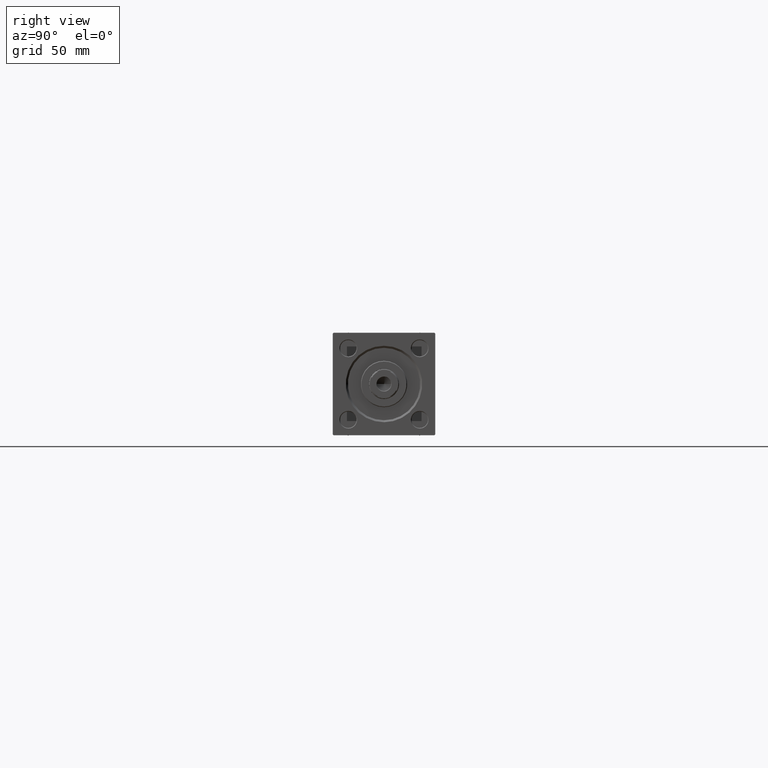
[diagram: clean part render]
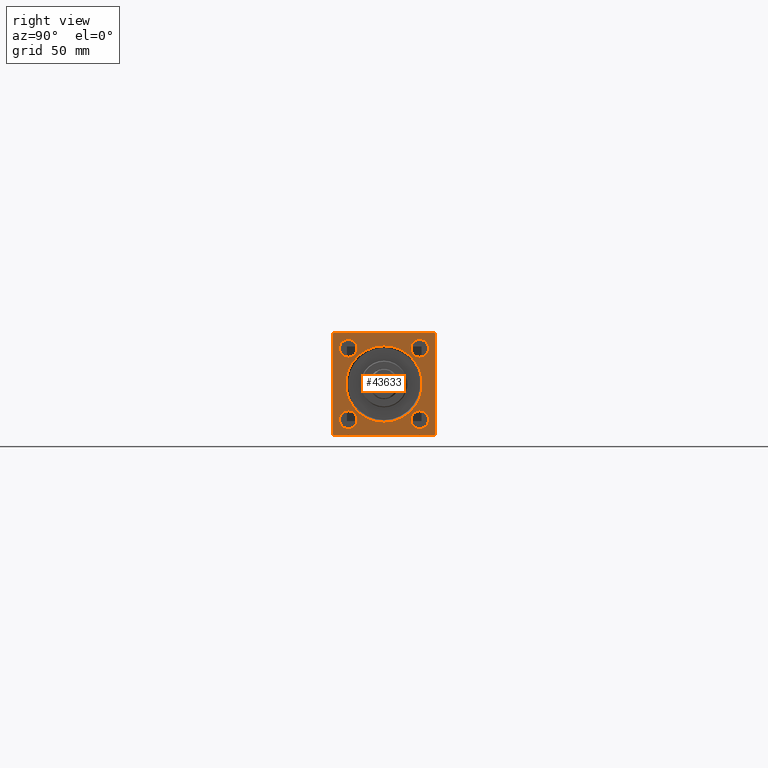
[diagram: same view with one face highlighted and labeled with its STEP entity id]
A machine part, right view. The second image highlights one B-rep face of the part: STEP entity #43633.
In plain terms, the highlighted planar face has unit normal (-1, 0, 0).
Its self-contained STEP definition (entity closure, byte-faithful):
#12 = AXIS2_PLACEMENT_3D ( 'NONE', #47510, #39632, #32519 ) ;
#277 = EDGE_CURVE ( 'NONE', #32276, #446, #18091, .T. ) ;
#446 = VERTEX_POINT ( 'NONE', #41942 ) ;
#482 = DIRECTION ( 'NONE',  ( -1.000000000000000000, -0.000000000000000000, 0.000000000000000000 ) ) ;
#700 = ORIENTED_EDGE ( 'NONE', *, *, #19279, .T. ) ;
#1083 = ORIENTED_EDGE ( 'NONE', *, *, #29863, .T. ) ;
#1148 = VERTEX_POINT ( 'NONE', #15668 ) ;
#1328 = EDGE_LOOP ( 'NONE', ( #38998, #32212 ) ) ;
#1414 = AXIS2_PLACEMENT_3D ( 'NONE', #1860, #17068, #5164 ) ;
#1620 = DIRECTION ( 'NONE',  ( -1.000000000000000000, -0.000000000000000000, 0.000000000000000000 ) ) ;
#1860 = CARTESIAN_POINT ( 'NONE',  ( 484.0000000000000000, -26.15000000000000213, -26.15000000000000213 ) ) ;
#2345 = DIRECTION ( 'NONE',  ( -1.000000000000000000, -0.000000000000000000, 0.000000000000000000 ) ) ;
#2607 = LINE ( 'NONE', #22624, #45811 ) ;
#2797 = CIRCLE ( 'NONE', #3632, 6.499999999999897859 ) ;
#3298 = DIRECTION ( 'NONE',  ( -1.000000000000000000, -0.000000000000000000, 0.000000000000000000 ) ) ;
#3632 = AXIS2_PLACEMENT_3D ( 'NONE', #9208, #9458, #24935 ) ;
#4351 = VERTEX_POINT ( 'NONE', #47720 ) ;
#4860 = CIRCLE ( 'NONE', #49428, 28.00000000000002487 ) ;
#5147 = ORIENTED_EDGE ( 'NONE', *, *, #277, .T. ) ;
#5164 = DIRECTION ( 'NONE',  ( 0.000000000000000000, 0.000000000000000000, 1.000000000000000000 ) ) ;
#5365 = FACE_OUTER_BOUND ( 'NONE', #22930, .T. ) ;
#5937 = DIRECTION ( 'NONE',  ( -0.000000000000000000, 0.7071067811865033859, 0.7071067811865916486 ) ) ;
#6113 = CARTESIAN_POINT ( 'NONE',  ( 484.0000000000000000, -26.14999999999999147, 19.65000000000010516 ) ) ;
#6312 = ORIENTED_EDGE ( 'NONE', *, *, #6482, .T. ) ;
#6482 = EDGE_CURVE ( 'NONE', #43021, #4351, #15497, .T. ) ;
#6827 = VECTOR ( 'NONE', #22857, 1000.000000000000000 ) ;
#7021 = VERTEX_POINT ( 'NONE', #12638 ) ;
#7390 = CARTESIAN_POINT ( 'NONE',  ( 484.0000000000000000, 26.14999999999999858, 32.64999999999989910 ) ) ;
#7614 = CARTESIAN_POINT ( 'NONE',  ( 484.0000000000000000, 0.000000000000000000, 0.000000000000000000 ) ) ;
#7817 = CARTESIAN_POINT ( 'NONE',  ( 484.0000000000000000, -37.50000000000000000, 37.49999999999997868 ) ) ;
#7839 = EDGE_CURVE ( 'NONE', #14297, #42248, #2797, .T. ) ;
#8222 = DIRECTION ( 'NONE',  ( -1.000000000000000000, -0.000000000000000000, 0.000000000000000000 ) ) ;
#8640 = AXIS2_PLACEMENT_3D ( 'NONE', #7614, #3298, #45438 ) ;
#8677 = FACE_BOUND ( 'NONE', #1328, .T. ) ;
#9208 = CARTESIAN_POINT ( 'NONE',  ( 484.0000000000000000, 26.14999999999999858, 26.15000000000000213 ) ) ;
#9310 = ORIENTED_EDGE ( 'NONE', *, *, #28996, .T. ) ;
#9458 = DIRECTION ( 'NONE',  ( -1.000000000000000000, -0.000000000000000000, 0.000000000000000000 ) ) ;
#9748 = CARTESIAN_POINT ( 'NONE',  ( 484.0000000000000000, -26.15000000000000213, -26.15000000000000213 ) ) ;
#9995 = VERTEX_POINT ( 'NONE', #30140 ) ;
#10073 = DIRECTION ( 'NONE',  ( 0.000000000000000000, 0.000000000000000000, 1.000000000000000000 ) ) ;
#10231 = CIRCLE ( 'NONE', #31287, 6.499999999999891642 ) ;
#10456 = DIRECTION ( 'NONE',  ( 0.000000000000000000, 0.000000000000000000, 1.000000000000000000 ) ) ;
#10497 = EDGE_LOOP ( 'NONE', ( #1083, #50101 ) ) ;
#10959 = CARTESIAN_POINT ( 'NONE',  ( 484.0000000000000000, 26.14999999999999858, -26.15000000000000213 ) ) ;
#10977 = DIRECTION ( 'NONE',  ( 0.000000000000000000, -0.7071067811865867636, 0.7071067811865081598 ) ) ;
#11746 = VERTEX_POINT ( 'NONE', #37940 ) ;
#12638 = CARTESIAN_POINT ( 'NONE',  ( 484.0000000000000000, -26.15000000000000213, -19.65000000000010871 ) ) ;
#12693 = VECTOR ( 'NONE', #10977, 1000.000000000000000 ) ;
#13561 = ORIENTED_EDGE ( 'NONE', *, *, #36778, .T. ) ;
#14297 = VERTEX_POINT ( 'NONE', #7390 ) ;
#15497 = LINE ( 'NONE', #22351, #6827 ) ;
#15557 = CIRCLE ( 'NONE', #38276, 6.499999999999897859 ) ;
#15668 = CARTESIAN_POINT ( 'NONE',  ( 484.0000000000000000, -26.14999999999999147, 32.64999999999988489 ) ) ;
#17068 = DIRECTION ( 'NONE',  ( -1.000000000000000000, -0.000000000000000000, 0.000000000000000000 ) ) ;
#17361 = DIRECTION ( 'NONE',  ( 0.000000000000000000, 0.000000000000000000, 1.000000000000000000 ) ) ;
#18091 = LINE ( 'NONE', #32837, #30917 ) ;
#18151 = VERTEX_POINT ( 'NONE', #42766 ) ;
#18165 = CARTESIAN_POINT ( 'NONE',  ( 484.0000000000000000, -26.14999999999999147, 26.14999999999999503 ) ) ;
#18248 = EDGE_CURVE ( 'NONE', #42248, #14297, #47168, .T. ) ;
#19279 = EDGE_CURVE ( 'NONE', #9995, #40767, #15557, .T. ) ;
#19802 = DIRECTION ( 'NONE',  ( -0.000000000000000000, -0.7071067811865081598, -0.7071067811865867636 ) ) ;
#20074 = EDGE_CURVE ( 'NONE', #40767, #9995, #30210, .T. ) ;
#20444 = DIRECTION ( 'NONE',  ( -1.000000000000000000, -0.000000000000000000, 0.000000000000000000 ) ) ;
#20450 = CARTESIAN_POINT ( 'NONE',  ( 484.0000000000000000, 26.14999999999999858, 19.65000000000010516 ) ) ;
#20585 = FACE_BOUND ( 'NONE', #34595, .T. ) ;
#22218 = DIRECTION ( 'NONE',  ( -1.000000000000000000, -0.000000000000000000, 0.000000000000000000 ) ) ;
#22351 = CARTESIAN_POINT ( 'NONE',  ( 484.0000000000000000, -36.99999999999995737, -37.50000000000000000 ) ) ;
#22441 = CARTESIAN_POINT ( 'NONE',  ( 484.0000000000000000, -37.50000000000000000, 36.99999999999992184 ) ) ;
#22624 = CARTESIAN_POINT ( 'NONE',  ( 484.0000000000000000, 37.50000000000000000, -37.50000000000000000 ) ) ;
#22720 = EDGE_CURVE ( 'NONE', #32857, #43021, #30175, .T. ) ;
#22857 = DIRECTION ( 'NONE',  ( 0.000000000000000000, 0.7071067811865867636, -0.7071067811865081598 ) ) ;
#22930 = EDGE_LOOP ( 'NONE', ( #28804, #6312, #29318, #5147, #47269, #30245, #37900, #29922 ) ) ;
#23012 = VECTOR ( 'NONE', #39717, 1000.000000000000000 ) ;
#23951 = DIRECTION ( 'NONE',  ( 0.000000000000000000, 0.000000000000000000, 1.000000000000000000 ) ) ;
#23992 = EDGE_CURVE ( 'NONE', #11746, #43004, #28046, .T. ) ;
#24153 = FACE_BOUND ( 'NONE', #32332, .T. ) ;
#24267 = EDGE_CURVE ( 'NONE', #18151, #446, #47782, .T. ) ;
#24375 = VECTOR ( 'NONE', #19802, 1000.000000000000000 ) ;
#24678 = DIRECTION ( 'NONE',  ( 0.000000000000000000, 0.000000000000000000, -1.000000000000000000 ) ) ;
#24935 = DIRECTION ( 'NONE',  ( 0.000000000000000000, 0.000000000000000000, 1.000000000000000000 ) ) ;
#25718 = VERTEX_POINT ( 'NONE', #25976 ) ;
#25976 = CARTESIAN_POINT ( 'NONE',  ( 484.0000000000000000, 0.000000000000000000, -28.00000000000002487 ) ) ;
#26525 = CIRCLE ( 'NONE', #1414, 6.499999999999897859 ) ;
#26690 = CARTESIAN_POINT ( 'NONE',  ( 484.0000000000000000, -26.15000000000000213, -32.64999999999989910 ) ) ;
#27218 = ORIENTED_EDGE ( 'NONE', *, *, #20074, .T. ) ;
#27318 = EDGE_CURVE ( 'NONE', #32276, #4351, #2607, .T. ) ;
#27804 = CARTESIAN_POINT ( 'NONE',  ( 484.0000000000000000, 37.50000000000000000, 37.49999999999999289 ) ) ;
#27968 = FACE_BOUND ( 'NONE', #36763, .T. ) ;
#28046 = LINE ( 'NONE', #27804, #23012 ) ;
#28513 = ORIENTED_EDGE ( 'NONE', *, *, #31600, .T. ) ;
#28804 = ORIENTED_EDGE ( 'NONE', *, *, #22720, .T. ) ;
#28996 = EDGE_CURVE ( 'NONE', #1148, #48762, #10231, .T. ) ;
#29318 = ORIENTED_EDGE ( 'NONE', *, *, #27318, .F. ) ;
#29863 = EDGE_CURVE ( 'NONE', #25718, #47843, #45123, .T. ) ;
#29914 = CIRCLE ( 'NONE', #44498, 6.499999999999891642 ) ;
#29922 = ORIENTED_EDGE ( 'NONE', *, *, #46518, .T. ) ;
#30140 = CARTESIAN_POINT ( 'NONE',  ( 484.0000000000000000, 26.14999999999999858, -19.65000000000010871 ) ) ;
#30175 = LINE ( 'NONE', #7817, #48907 ) ;
#30210 = CIRCLE ( 'NONE', #43966, 6.499999999999897859 ) ;
#30245 = ORIENTED_EDGE ( 'NONE', *, *, #34049, .T. ) ;
#30773 = CARTESIAN_POINT ( 'NONE',  ( 484.0000000000000000, 36.99999999999994316, 37.49999999999999289 ) ) ;
#30917 = VECTOR ( 'NONE', #5937, 1000.000000000000000 ) ;
#31277 = LINE ( 'NONE', #30773, #12693 ) ;
#31287 = AXIS2_PLACEMENT_3D ( 'NONE', #18165, #22218, #10073 ) ;
#31445 = CARTESIAN_POINT ( 'NONE',  ( 484.0000000000000000, 0.000000000000000000, 0.000000000000000000 ) ) ;
#31600 = EDGE_CURVE ( 'NONE', #7021, #36960, #40305, .T. ) ;
#32128 = DIRECTION ( 'NONE',  ( 0.000000000000000000, 0.000000000000000000, 1.000000000000000000 ) ) ;
#32212 = ORIENTED_EDGE ( 'NONE', *, *, #7839, .T. ) ;
#32276 = VERTEX_POINT ( 'NONE', #46335 ) ;
#32332 = EDGE_LOOP ( 'NONE', ( #27218, #700 ) ) ;
#32519 = DIRECTION ( 'NONE',  ( 0.000000000000000000, 0.000000000000000000, 1.000000000000000000 ) ) ;
#32601 = DIRECTION ( 'NONE',  ( -1.000000000000000000, -0.000000000000000000, 0.000000000000000000 ) ) ;
#32837 = CARTESIAN_POINT ( 'NONE',  ( 484.0000000000000000, 37.50000000000000000, -36.99999999999993605 ) ) ;
#32857 = VERTEX_POINT ( 'NONE', #22441 ) ;
#34049 = EDGE_CURVE ( 'NONE', #18151, #11746, #31277, .T. ) ;
#34595 = EDGE_LOOP ( 'NONE', ( #47592, #9310 ) ) ;
#34859 = CARTESIAN_POINT ( 'NONE',  ( 484.0000000000000000, -26.14999999999999147, 26.14999999999999503 ) ) ;
#35639 = CARTESIAN_POINT ( 'NONE',  ( 484.0000000000000000, 26.14999999999999858, 26.15000000000000213 ) ) ;
#35676 = CARTESIAN_POINT ( 'NONE',  ( 484.0000000000000000, 26.14999999999999858, -26.15000000000000213 ) ) ;
#36763 = EDGE_LOOP ( 'NONE', ( #13561, #28513 ) ) ;
#36778 = EDGE_CURVE ( 'NONE', #36960, #7021, #26525, .T. ) ;
#36960 = VERTEX_POINT ( 'NONE', #26690 ) ;
#37038 = AXIS2_PLACEMENT_3D ( 'NONE', #9748, #32601, #17361 ) ;
#37900 = ORIENTED_EDGE ( 'NONE', *, *, #23992, .T. ) ;
#37940 = CARTESIAN_POINT ( 'NONE',  ( 484.0000000000000000, 36.99999999999994316, 37.49999999999999289 ) ) ;
#38276 = AXIS2_PLACEMENT_3D ( 'NONE', #10959, #2345, #10456 ) ;
#38347 = AXIS2_PLACEMENT_3D ( 'NONE', #35639, #1620, #47576 ) ;
#38568 = CARTESIAN_POINT ( 'NONE',  ( 484.0000000000000000, -37.00000000000000000, 37.49999999999997868 ) ) ;
#38849 = LINE ( 'NONE', #50025, #24375 ) ;
#38998 = ORIENTED_EDGE ( 'NONE', *, *, #18248, .T. ) ;
#39632 = DIRECTION ( 'NONE',  ( -1.000000000000000000, -0.000000000000000000, 0.000000000000000000 ) ) ;
#39717 = DIRECTION ( 'NONE',  ( 0.000000000000000000, -1.000000000000000000, -1.850371707708594316E-16 ) ) ;
#39880 = PLANE ( 'NONE',  #12 ) ;
#40133 = FACE_BOUND ( 'NONE', #10497, .T. ) ;
#40305 = CIRCLE ( 'NONE', #37038, 6.499999999999897859 ) ;
#40767 = VERTEX_POINT ( 'NONE', #43264 ) ;
#40925 = CARTESIAN_POINT ( 'NONE',  ( 484.0000000000000000, 37.50000000000000000, 37.49999999999999289 ) ) ;
#41587 = EDGE_CURVE ( 'NONE', #48762, #1148, #29914, .T. ) ;
#41942 = CARTESIAN_POINT ( 'NONE',  ( 484.0000000000000000, 37.50000000000000000, -36.99999999999993605 ) ) ;
#42248 = VERTEX_POINT ( 'NONE', #20450 ) ;
#42443 = VECTOR ( 'NONE', #24678, 1000.000000000000000 ) ;
#42766 = CARTESIAN_POINT ( 'NONE',  ( 484.0000000000000000, 37.50000000000000000, 36.99999999999999289 ) ) ;
#43004 = VERTEX_POINT ( 'NONE', #38568 ) ;
#43021 = VERTEX_POINT ( 'NONE', #45690 ) ;
#43113 = DIRECTION ( 'NONE',  ( 0.000000000000000000, 0.000000000000000000, 1.000000000000000000 ) ) ;
#43264 = CARTESIAN_POINT ( 'NONE',  ( 484.0000000000000000, 26.14999999999999858, -32.64999999999989910 ) ) ;
#43633 = ADVANCED_FACE ( 'NONE', ( #8677, #20585, #27968, #24153, #40133, #5365 ), #39880, .F. ) ;
#43702 = EDGE_CURVE ( 'NONE', #47843, #25718, #4860, .T. ) ;
#43966 = AXIS2_PLACEMENT_3D ( 'NONE', #35676, #20444, #32128 ) ;
#44498 = AXIS2_PLACEMENT_3D ( 'NONE', #34859, #8222, #23951 ) ;
#45123 = CIRCLE ( 'NONE', #8640, 28.00000000000002487 ) ;
#45391 = DIRECTION ( 'NONE',  ( 0.000000000000000000, -9.251858538542972814E-17, -1.000000000000000000 ) ) ;
#45438 = DIRECTION ( 'NONE',  ( 0.000000000000000000, 0.000000000000000000, 1.000000000000000000 ) ) ;
#45690 = CARTESIAN_POINT ( 'NONE',  ( 484.0000000000000000, -37.50000000000000711, -37.00000000000000711 ) ) ;
#45811 = VECTOR ( 'NONE', #49311, 1000.000000000000000 ) ;
#46335 = CARTESIAN_POINT ( 'NONE',  ( 484.0000000000000000, 37.00000000000000000, -37.50000000000000000 ) ) ;
#46518 = EDGE_CURVE ( 'NONE', #43004, #32857, #38849, .T. ) ;
#46729 = CARTESIAN_POINT ( 'NONE',  ( 484.0000000000000000, 3.429011037612592037E-15, 28.00000000000002487 ) ) ;
#47168 = CIRCLE ( 'NONE', #38347, 6.499999999999897859 ) ;
#47269 = ORIENTED_EDGE ( 'NONE', *, *, #24267, .F. ) ;
#47510 = CARTESIAN_POINT ( 'NONE',  ( 484.0000000000000000, 0.000000000000000000, 0.000000000000000000 ) ) ;
#47576 = DIRECTION ( 'NONE',  ( 0.000000000000000000, 0.000000000000000000, 1.000000000000000000 ) ) ;
#47592 = ORIENTED_EDGE ( 'NONE', *, *, #41587, .T. ) ;
#47720 = CARTESIAN_POINT ( 'NONE',  ( 484.0000000000000000, -36.99999999999995737, -37.50000000000000000 ) ) ;
#47782 = LINE ( 'NONE', #40925, #42443 ) ;
#47843 = VERTEX_POINT ( 'NONE', #46729 ) ;
#48762 = VERTEX_POINT ( 'NONE', #6113 ) ;
#48907 = VECTOR ( 'NONE', #45391, 1000.000000000000000 ) ;
#49311 = DIRECTION ( 'NONE',  ( 0.000000000000000000, -1.000000000000000000, 0.000000000000000000 ) ) ;
#49428 = AXIS2_PLACEMENT_3D ( 'NONE', #31445, #482, #43113 ) ;
#50025 = CARTESIAN_POINT ( 'NONE',  ( 484.0000000000000000, -37.50000000000000000, 36.99999999999992184 ) ) ;
#50101 = ORIENTED_EDGE ( 'NONE', *, *, #43702, .T. ) ;